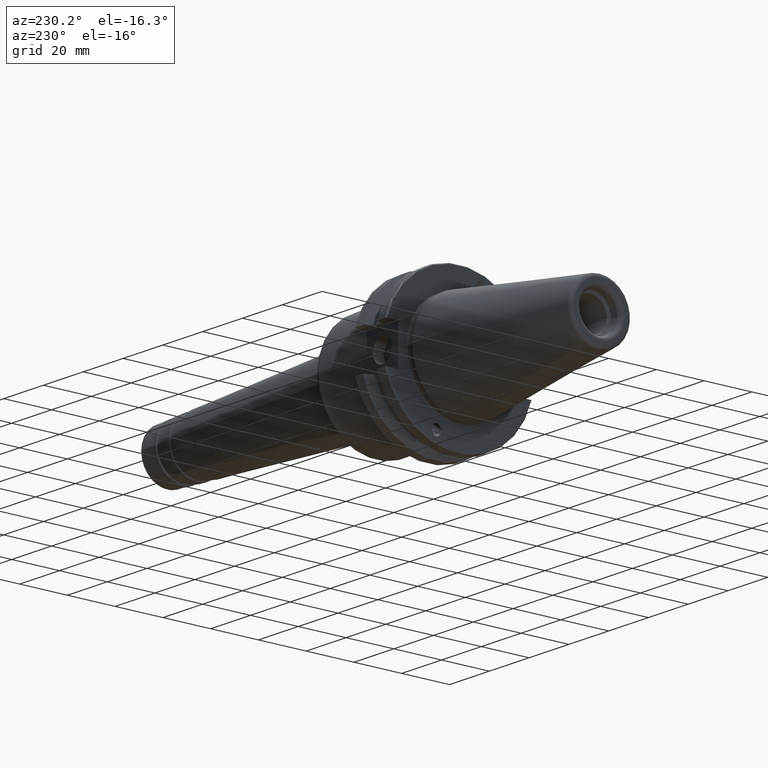
[diagram: clean part render]
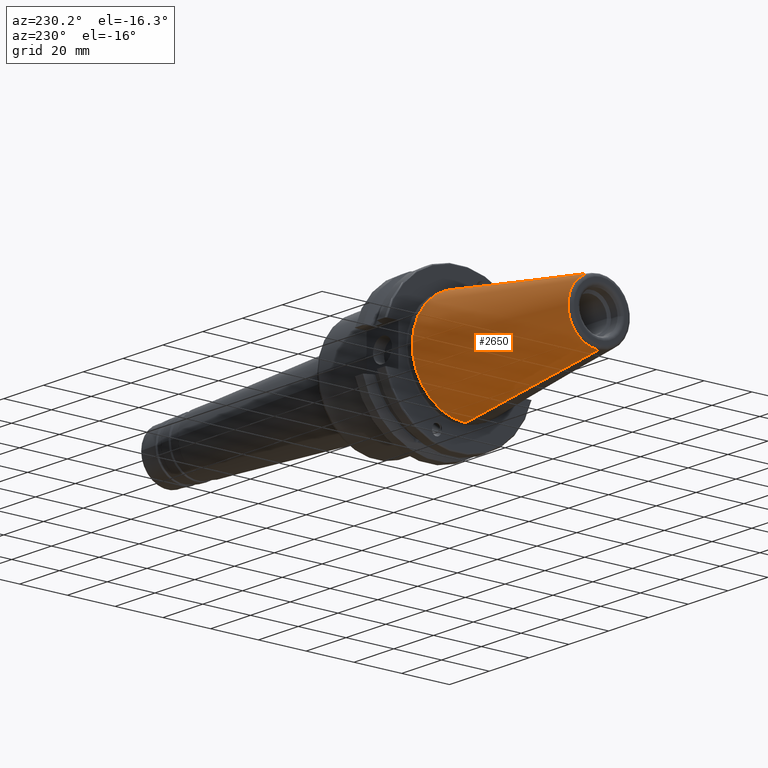
[diagram: same view with one face highlighted and labeled with its STEP entity id]
A machine part, auxiliary view. The second image highlights one B-rep face of the part: STEP entity #2650.
In plain terms, the highlighted conical surface has half-angle 8 deg.
Its self-contained STEP definition (entity closure, byte-faithful):
#2=CARTESIAN_POINT('',(5.184256354429E-6,8.750759618949E-1,8.684607786515E-10));
#3=CARTESIAN_POINT('',(5.185977047783E-6,8.750759621367E-1,4.581760194087E-2));
#4=CARTESIAN_POINT('',(4.020711245086E-4,8.678091184959E-1,1.374582546258E-1));
#5=CARTESIAN_POINT('',(2.425390878343E-4,8.356412448387E-1,2.715298523387E-1));
#6=CARTESIAN_POINT('',(2.853395133510E-4,7.828674017975E-1,3.989159159341E-1));
#7=CARTESIAN_POINT('',(2.736698479690E-4,7.108219821412E-1,5.164781244139E-1));
#8=CARTESIAN_POINT('',(2.775480839909E-4,6.212704616938E-1,6.213213286701E-1));
#9=CARTESIAN_POINT('',(2.737048052960E-4,5.164185767854E-1,7.108648006840E-1));
#10=CARTESIAN_POINT('',(2.851996840591E-4,3.988534876344E-1,7.829006255362E-1));
#11=CARTESIAN_POINT('',(2.430634477124E-4,2.714571991277E-1,8.356601185298E-1));
#12=CARTESIAN_POINT('',(4.001135143415E-4,1.373905520255E-1,8.678370959983E-1));
#13=CARTESIAN_POINT('',(9.404160894885E-6,4.579037553948E-2,8.750350968063E-1));
#14=CARTESIAN_POINT('',(9.404160894899E-6,0.E0,8.750350968063E-1));
#16=CARTESIAN_POINT('',(-2.636211212957E0,0.E0,0.E0));
#17=DIRECTION('',(-1.E0,0.E0,0.E0));
#18=DIRECTION('',(0.E0,0.E0,1.E0));
#19=AXIS2_PLACEMENT_3D('',#16,#17,#18);
#21=CARTESIAN_POINT('',(9.404160894455E-6,0.E0,-8.750350968063E-1));
#22=CARTESIAN_POINT('',(9.404160894469E-6,4.579037552743E-2,
-8.750350968063E-1));
#23=CARTESIAN_POINT('',(4.001135143178E-4,1.373905519960E-1,
-8.678370960029E-1));
#24=CARTESIAN_POINT('',(2.430634477159E-4,2.714571991100E-1,
-8.356601185359E-1));
#25=CARTESIAN_POINT('',(2.851996839886E-4,3.988534876110E-1,
-7.829006255476E-1));
#26=CARTESIAN_POINT('',(2.737048054998E-4,5.164185767630E-1,
-7.108648007007E-1));
#27=CARTESIAN_POINT('',(2.775480831821E-4,6.212704616941E-1,
-6.213213286738E-1));
#28=CARTESIAN_POINT('',(2.736698509418E-4,7.108219821237E-1,
-5.164781244212E-1));
#29=CARTESIAN_POINT('',(2.853395022208E-4,7.828674017787E-1,
-3.989159160235E-1));
#30=CARTESIAN_POINT('',(2.425391293451E-4,8.356412448259E-1,
-2.715298521811E-1));
#31=CARTESIAN_POINT('',(4.020709695689E-4,8.678091184727E-1,
-1.374582554541E-1));
#32=CARTESIAN_POINT('',(5.186310889294E-6,8.750759621837E-1,
-4.581760021255E-2));
#33=CARTESIAN_POINT('',(5.184256354429E-6,8.750759618949E-1,
8.684607786515E-10));
#39=CARTESIAN_POINT('',(9.404160894899E-6,0.E0,8.750350968063E-1));
#67=DIRECTION('',(-9.902663201239E-1,9.568653732772E-12,1.391855424545E-1));
#68=VECTOR('',#67,2.662132967208E0);
#69=CARTESIAN_POINT('',(9.404160894455E-6,0.E0,-8.750350968063E-1));
#70=LINE('',#69,#68);
#76=DIRECTION('',(-9.902663201239E-1,-9.568651588075E-12,-1.391855424545E-1));
#77=VECTOR('',#76,2.662132967208E0);
#78=CARTESIAN_POINT('',(9.404160894899E-6,0.E0,8.750350968063E-1));
#79=LINE('',#78,#77);
#2314=CARTESIAN_POINT('',(-2.636211212957E0,0.E0,-5.045046756793E-1));
#2315=CARTESIAN_POINT('',(-2.636211212957E0,0.E0,5.045046756793E-1));
#2316=VERTEX_POINT('',#2314);
#2317=VERTEX_POINT('',#2315);
#2318=VERTEX_POINT('',#39);
#2320=VERTEX_POINT('',#2);
#2325=VERTEX_POINT('',#21);
#2633=CARTESIAN_POINT('',(-1.317954174432E0,0.E0,0.E0));
#2634=DIRECTION('',(1.E0,0.E0,0.E0));
#2635=DIRECTION('',(0.E0,0.E0,1.E0));
#2636=AXIS2_PLACEMENT_3D('',#2633,#2634,#2635);
#2637=CONICAL_SURFACE('',#2636,6.897736202258E-1,8.E0);
#2639=ORIENTED_EDGE('',*,*,#2638,.T.);
#2641=ORIENTED_EDGE('',*,*,#2640,.T.);
#2643=ORIENTED_EDGE('',*,*,#2642,.T.);
#2645=ORIENTED_EDGE('',*,*,#2644,.F.);
#2647=ORIENTED_EDGE('',*,*,#2646,.T.);
#2648=EDGE_LOOP('',(#2639,#2641,#2643,#2645,#2647));
#2649=FACE_OUTER_BOUND('',#2648,.F.);
#2650=ADVANCED_FACE('',(#2649),#2637,.T.);
#15=B_SPLINE_CURVE_WITH_KNOTS('',3,(#2,#3,#4,#5,#6,#7,#8,#9,#10,#11,#12,#13,
#14),.UNSPECIFIED.,.F.,.F.,(4,1,1,1,1,1,1,1,1,1,4),(0.E0,1.E-1,2.E-1,3.E-1,
4.E-1,5.E-1,6.E-1,7.E-1,8.E-1,9.E-1,1.E0),.UNSPECIFIED.);
#20=CIRCLE('',#19,5.045046756793E-1);
#34=B_SPLINE_CURVE_WITH_KNOTS('',3,(#21,#22,#23,#24,#25,#26,#27,#28,#29,#30,#31,
#32,#33),.UNSPECIFIED.,.F.,.F.,(4,1,1,1,1,1,1,1,1,1,4),(0.E0,1.E-1,2.E-1,3.E-1,
4.E-1,5.E-1,6.E-1,7.E-1,8.E-1,9.E-1,1.E0),.UNSPECIFIED.);
#2638=EDGE_CURVE('',#2320,#2318,#15,.T.);
#2640=EDGE_CURVE('',#2318,#2317,#79,.T.);
#2642=EDGE_CURVE('',#2317,#2316,#20,.T.);
#2644=EDGE_CURVE('',#2325,#2316,#70,.T.);
#2646=EDGE_CURVE('',#2325,#2320,#34,.T.);